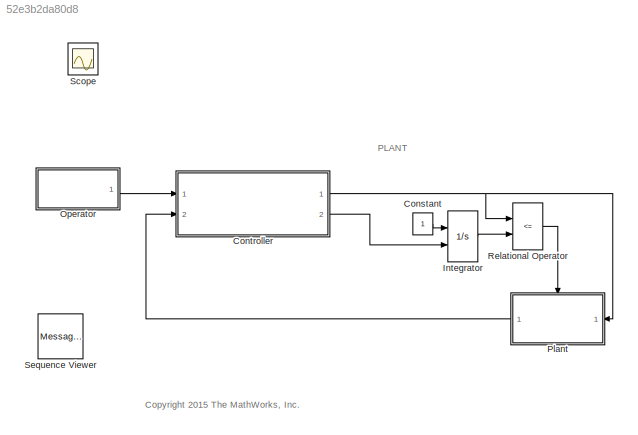
MODEL slx_52e3b2da80d8
KIND model
CONFIG AbsTol = auto
CONFIG EnableMultiTasking = on
CONFIG FixedStep = auto
CONFIG MaxStep = auto
CONFIG MinStep = auto
CONFIG PreLoadFcn = queueLength = 10;
CONFIG RelTol = 1e-3
CONFIG SampleTimeConstraint = Unconstrained
CONFIG Solver = ode45
CONFIG SolverName = ode45
CONFIG StartTime = 0.0
CONFIG StopTime = 50
BLOCK [Constant] Constant
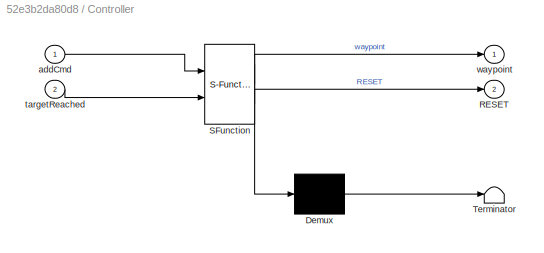
BLOCK [SubSystem] Controller
  ErrorFcn = Stateflow.Translate.translate
  PermitHierarchicalResolution = ExplicitOnly
  Ports = [2, 2]
  RequestExecContextInheritance = off
  SFBlockType = Chart
  TreatAsAtomicUnit = on
  Variant = off
BLOCK [Demux] Controller/ Demux 
  Outputs = 1
  Ports = [1, 1]
BLOCK [S-Function] Controller/ SFunction 
  EnableBusSupport = off
  FunctionName = sf_sfun
  PortCounts = [2 3]
  Ports = [2, 3]
  SFcnIsStateOwnerBlock = off
  SFunctionDeploymentMode = off
  Tag = Stateflow S-Function sf_msg_priority_queue_server 5
BLOCK [Terminator] Controller/ Terminator 
BLOCK [Outport] Controller/RESET
  IconDisplay = Port number
  Port = 2
BLOCK [Inport] Controller/addCmd
  IconDisplay = Port number
BLOCK [Inport] Controller/targetReached
  IconDisplay = Port number
  Port = 2
BLOCK [Outport] Controller/waypoint
  IconDisplay = Port number
BLOCK [Integrator] Integrator
  ExternalReset = either
  Ports = [2, 1]
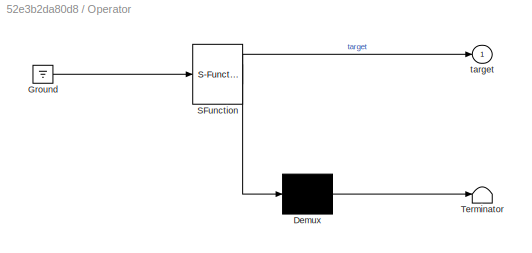
BLOCK [SubSystem] Operator
  ErrorFcn = Stateflow.Translate.translate
  PermitHierarchicalResolution = ExplicitOnly
  Ports = [0, 1]
  RequestExecContextInheritance = off
  SFBlockType = Chart
  TreatAsAtomicUnit = on
  Variant = off
BLOCK [Demux] Operator/ Demux 
  Outputs = 1
  Ports = [1, 1]
BLOCK [Ground] Operator/ Ground 
BLOCK [S-Function] Operator/ SFunction 
  EnableBusSupport = off
  FunctionName = sf_sfun
  PortCounts = [1 2]
  Ports = [1, 2]
  SFcnIsStateOwnerBlock = off
  SFunctionDeploymentMode = off
  Tag = Stateflow S-Function sf_msg_priority_queue_server 4
BLOCK [Terminator] Operator/ Terminator 
BLOCK [Outport] Operator/target
  IconDisplay = Port number
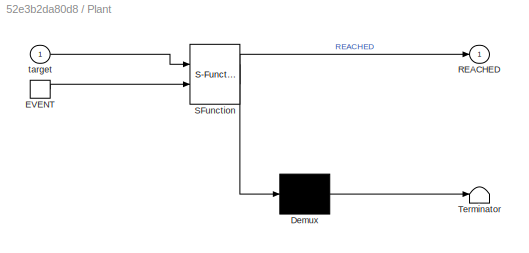
BLOCK [SubSystem] Plant
  ErrorFcn = Stateflow.Translate.translate
  PermitHierarchicalResolution = ExplicitOnly
  Ports = [1, 1, 0, 1]
  RequestExecContextInheritance = off
  SFBlockType = Chart
  TreatAsAtomicUnit = on
  Variant = off
BLOCK [Demux] Plant/ Demux 
  Outputs = 1
  Ports = [1, 1]
BLOCK [S-Function] Plant/ SFunction 
  EnableBusSupport = off
  FunctionName = sf_sfun
  PortCounts = [2 2]
  Ports = [2, 2]
  SFcnIsStateOwnerBlock = off
  SFunctionDeploymentMode = off
  Tag = Stateflow S-Function sf_msg_priority_queue_server 1
BLOCK [Terminator] Plant/ Terminator 
BLOCK [TriggerPort] Plant/EVENT
  Ports = [0, 1]
  ShowOutputPort = on
  StatesWhenEnabling = held
  VariantControl = (inherit)
BLOCK [Outport] Plant/REACHED
  IconDisplay = Port number
BLOCK [Inport] Plant/target
  IconDisplay = Port number
BLOCK [RelationalOperator] Relational Operator
  InputSameDT = off
  Operator = <=
  OutDataTypeStr = boolean
  Ports = [2, 1]
BLOCK [Scope] Scope
  IOType = viewer
  NumInputPorts = 1
  Ports = []
  ScopeSpecificationString = Simulink.scopes.TimeScopeBlockCfg('CurrentConfiguration', extmgr.ConfigurationSet(extmgr.Configuration('Core','General UI',true),extmgr.Configuration('Core','Source UI',true),extmgr.Configuration('Sources','WiredSimulink',true),extmgr.Configuration('Visuals','Time Domain',true,'SerializedDisplays',{struct('MinYLimReal','-0.75','MaxYLimReal','6.75','YLabelReal','','MinYLimMag','0.00000','MaxYLimMag...<+1341ch>
BLOCK [MessageViewer] Sequence Viewer
ANNOTATION (root): <copyright redacted>
ANNOTATION (root): PLANT
LINE Constant:1 -> Integrator:1
NET Controller:1 -> Plant:1, Relational Operator:1
LINE Controller:2 -> Integrator:2
LINE Integrator:1 -> Relational Operator:2
LINE Operator:1 -> Controller:1
LINE Plant:1 -> Controller:2
LINE Relational Operator:1 -> Plant:trigger
note: NET lines group one-source signal fan-out (src -> all destinations, sorted); 1:1 wires keep LINE
CHART Plant states=0 transitions=1
CHART Operator states=2 transitions=21
  STATE_LABEL 'Send'
  STATE_LABEL "Pause\nex:\ncoder.extrinsic('pause');\npause(.1);"
CHART Controller states=2 transitions=3
  STATE_LABEL 'Idle\n'
  STATE_LABEL 'Busy\n'
